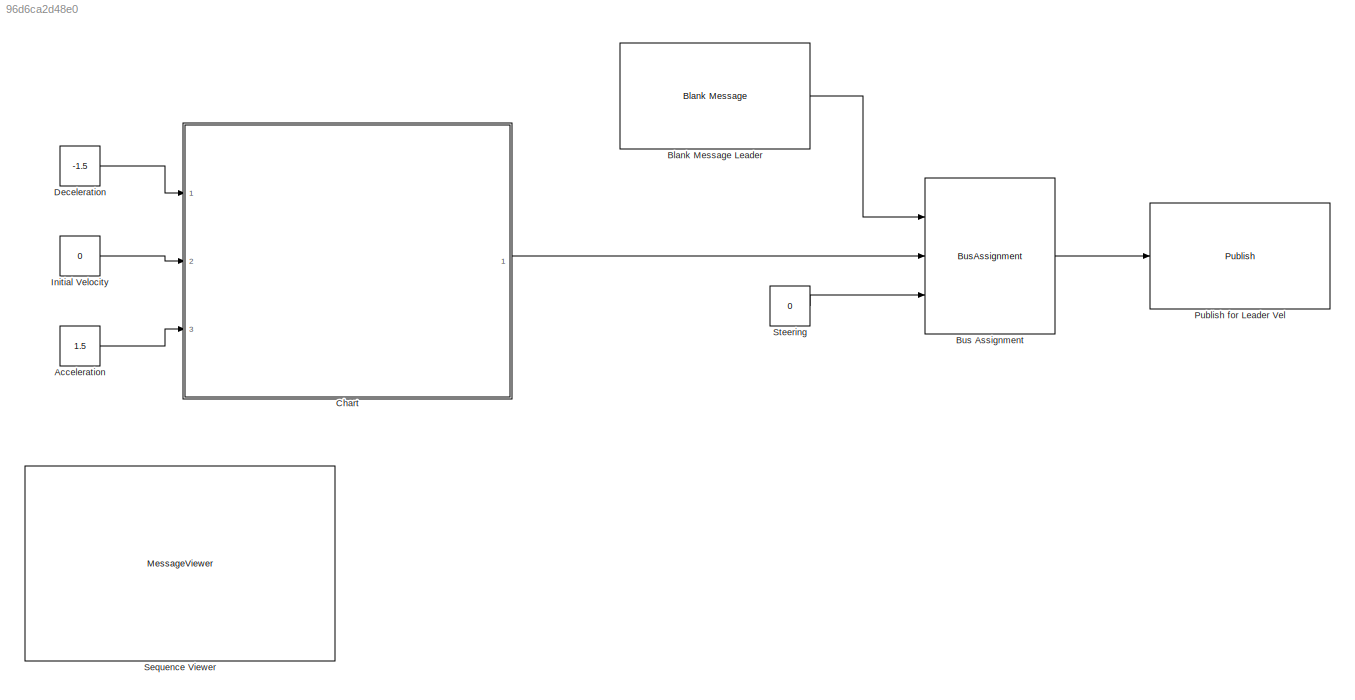
MODEL slx_96d6ca2d48e0
KIND model
CONFIG AbsTol = auto
CONFIG EnableMultiTasking = on
CONFIG FixedStep = auto
CONFIG MaxStep = auto
CONFIG MinStep = auto
CONFIG RelTol = 1e-3
CONFIG SampleTimeConstraint = Unconstrained
CONFIG Solver = FixedStepAuto
CONFIG SolverName = FixedStepAuto
CONFIG StartTime = 0.0
CONFIG StopTime = inf
BLOCK [Constant] Acceleration
  Value = 1.5
BLOCK [Reference] Blank Message Leader  REF=robotlib/Blank Message
  Ports = [0, 1]
  SourceBlock = robotlib/Blank Message
  SourceLibraryInfo = This block requires Robotics System Toolbox
  SourceProductBaseCode = RO
  SourceProductName = Robotics System Toolbox
  SourceType = ROS Blank Message
BLOCK [BusAssignment] Bus Assignment
  AssignedSignals = Linear.X,Angular.Z
  Ports = [3, 1]
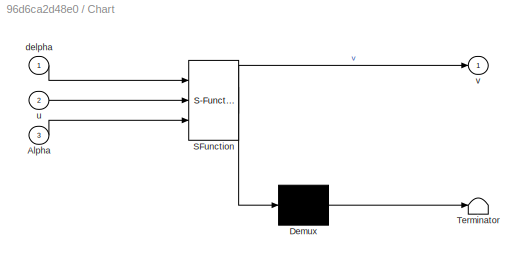
BLOCK [SubSystem] Chart
  ErrorFcn = Stateflow.Translate.translate
  PermitHierarchicalResolution = ExplicitOnly
  Ports = [3, 1]
  RequestExecContextInheritance = off
  SFBlockType = Chart
  TreatAsAtomicUnit = on
BLOCK [Demux] Chart/ Demux 
  Outputs = 1
  Ports = [1, 1]
BLOCK [S-Function] Chart/ SFunction 
  EnableBusSupport = on
  FunctionName = sf_sfun
  PortCounts = [3 2]
  Ports = [3, 2]
  SFcnIsStateOwnerBlock = off
  SFunctionDeploymentMode = off
  Tag = Stateflow S-Function cruise_control_statemachine 3
BLOCK [Terminator] Chart/ Terminator 
BLOCK [Inport] Chart/Alpha
  IconDisplay = Port number
  Port = 3
BLOCK [Inport] Chart/delpha
  IconDisplay = Port number
BLOCK [Inport] Chart/u
  IconDisplay = Port number
  Port = 2
BLOCK [Outport] Chart/v
  IconDisplay = Port number
BLOCK [Constant] Deceleration
  Value = -1.5
BLOCK [Constant] Initial Velocity
  Value = 0
BLOCK [Reference] Publish for Leader Vel  REF=robotlib/Publish
  Ports = [1]
  SourceBlock = robotlib/Publish
  SourceLibraryInfo = This block requires Robotics System Toolbox
  SourceProductBaseCode = RO
  SourceProductName = Robotics System Toolbox
  SourceType = ROS Publish
BLOCK [MessageViewer] Sequence Viewer
BLOCK [Constant] Steering
  Value = 0
LINE Acceleration:1 -> Chart:3
LINE Blank Message Leader:1 -> Bus Assignment:1
LINE Bus Assignment:1 -> Publish for Leader Vel:1
LINE Chart:1 -> Bus Assignment:2
LINE Deceleration:1 -> Chart:1
LINE Initial Velocity:1 -> Chart:2
LINE Steering:1 -> Bus Assignment:3
CHART Chart states=15 transitions=10
  STATE_LABEL 'DecelerateTo35\nentry: entryState = nextState; v = u2;\nduring: v = getNewV(v, delpha);\nexit: nextState = entryState + 1;'
  STATE_LABEL 'STATE 2'
  STATE_LABEL 'STATE 2'
  STATE_LABEL 'new_vel = getNewV(init_velocity, acceleration)'
  STATE_LABEL 'SCRIPT:\nfunction new_vel = getNewV(init_velocity, acceleration)\n\nnew_vel = init_velocity + (acceleration*0.05);\n\nend\n'
  STATE_LABEL 'AccelerateTo55_init\nentry: entryState = 1; v = u;\nduring: v = getNewV(v, Alpha)\nexit:  nextState = entryState + 1;'
  STATE_LABEL 'STATE 1'
  STATE_LABEL 'STATE 1'
  STATE_LABEL 'Hold\nentry: u2 = v;\nduring: v = u2;\nexit:'
  STATE_LABEL 'HOLD STATE'
  STATE_LABEL 'HOLD STATE'
  STATE_LABEL 'AccelerateTo55\nentry: entryState = nextState; v = u2;\nduring: v = getNewV(v, Alpha);\nexit: nextState = entryState + 1;'
  STATE_LABEL '<!DOCTYPE HTML PUBLIC "-//W3C//DTD HTML 4.0//EN" "http://www.w3.org/TR/REC-html40/strict.dtd">\n<html><head><meta name="qrichtext" content="1" /><style type="text/css">\np, li { white-space: pre-wrap; }\n</style></head><body style=" font-family:\'Helvetica\'; font-size:14px; font-weight:600; font-style:normal;">\n<p style=" margin-top:0px; margin-bottom:0px; margin-left:0px; margin-right:0px; -qt-block-...<+94ch>'
  STATE_LABEL '<!DOCTYPE HTML PUBLIC "-//W3C//DTD HTML 4.0//EN" "http://www.w3.org/TR/REC-html40/strict.dtd">\n<html><head><meta name="qrichtext" content="1" /><style type="text/css">\np, li { white-space: pre-wrap; }\n</style></head><body style=" font-family:\'Helvetica\'; font-size:14px; font-weight:600; font-style:normal;">\n<p style=" margin-top:0px; margin-bottom:0px; margin-left:0px; margin-right:0px; -qt-block-...<+94ch>'
  STATE_LABEL 'zero\nentry: v = 0;\nduring:v = 0;'
  STATE_LABEL 'STATE 12'
  STATE_LABEL 'STATE 12'
  STATE_LABEL 'DecelerateTo0\nentry: entryState = nextState; v= u2;\nduring: v = getNewV(v, delpha);\nexit: nextState = entryState + 1;'
  STATE_LABEL 'STATE 11'
  STATE_LABEL 'STATE 11'
  STATE_LABEL 'DecelerateTo45\nentry: entryState = nextState; v = u2;\nduring: v = getNewV(v, delpha);\nexit: nextState = entryState + 1;'
  STATE_LABEL 'STATE 4'
  STATE_LABEL 'STATE 4'
